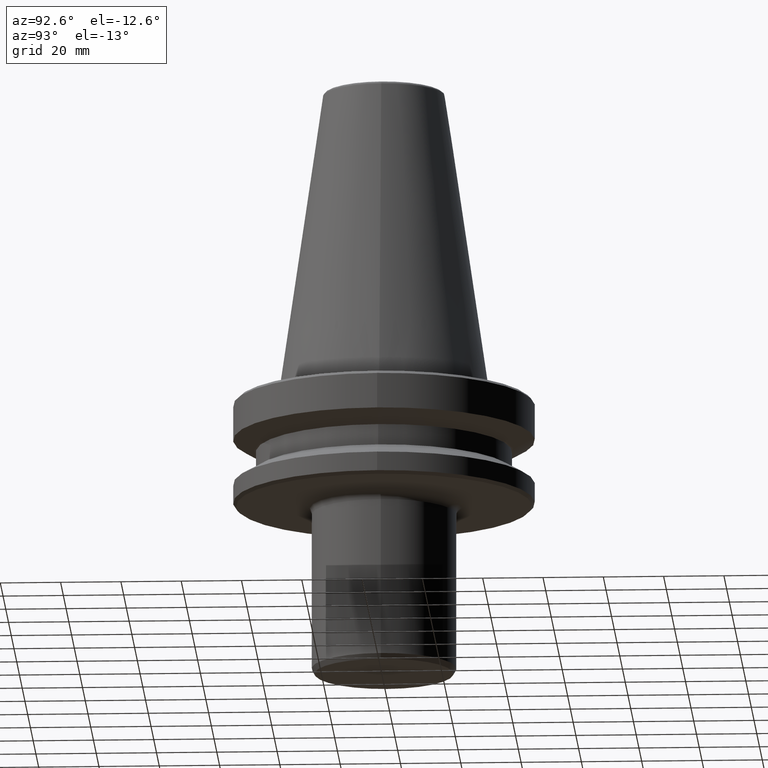
[diagram: clean part render]
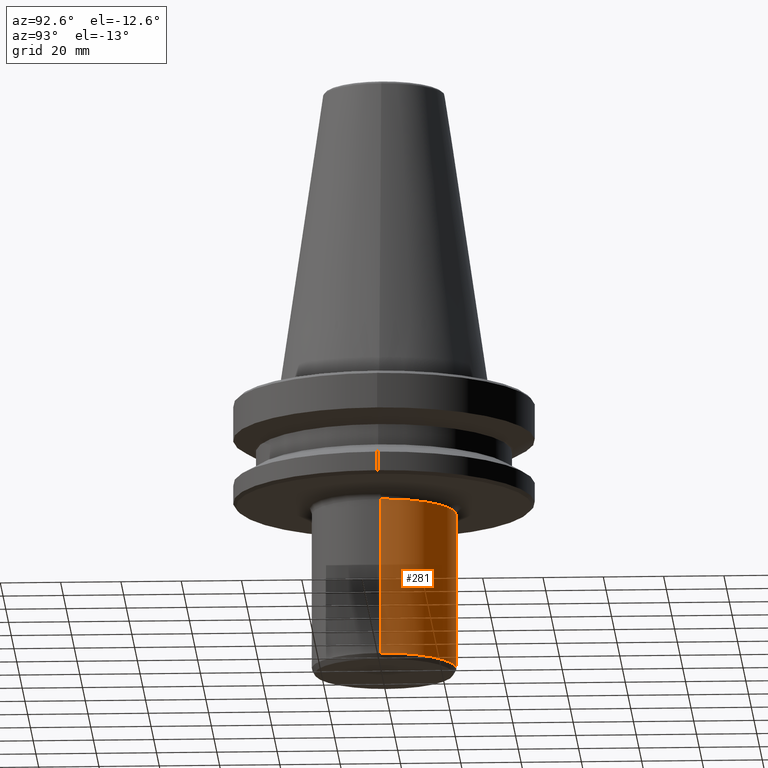
[diagram: same view with one face highlighted and labeled with its STEP entity id]
A machine part, auxiliary view. The second image highlights one B-rep face of the part: STEP entity #281.
In plain terms, the highlighted cylindrical surface (partial cylindrical patch) has radius 24 mm, axis along (-0, -0, 1).
Its self-contained STEP definition (entity closure, byte-faithful):
#25 = DIRECTION ( 'NONE',  ( 1.000000000000000000, 0.0000000000000000000, 0.0000000000000000000 ) ) ;
#30 = EDGE_CURVE ( 'NONE', #776, #101, #379, .T. ) ;
#45 = CARTESIAN_POINT ( 'NONE',  ( 0.0000000000000000000, 0.0000000000000000000, -93.26794919243195600 ) ) ;
#67 = CARTESIAN_POINT ( 'NONE',  ( 0.0000000000000000000, 0.0000000000000000000, 108.3108805077434200 ) ) ;
#77 = CARTESIAN_POINT ( 'NONE',  ( 24.00000000000000000, 0.0000000000000000000, -40.99999999994118100 ) ) ;
#101 = VERTEX_POINT ( 'NONE', #402 ) ;
#106 = CARTESIAN_POINT ( 'NONE',  ( 24.00000000000000000, 0.0000000000000000000, 108.3108805077434200 ) ) ;
#136 = VECTOR ( 'NONE', #952, 1000.000000000000000 ) ;
#187 = DIRECTION ( 'NONE',  ( -0.0000000000000000000, -0.0000000000000000000, 1.000000000000000000 ) ) ;
#213 = ORIENTED_EDGE ( 'NONE', *, *, #278, .T. ) ;
#244 = CARTESIAN_POINT ( 'NONE',  ( 24.00000000000000000, 0.0000000000000000000, -93.26794919243195600 ) ) ;
#265 = CIRCLE ( 'NONE', #878, 24.00000000000000000 ) ;
#266 = DIRECTION ( 'NONE',  ( -0.0000000000000000000, -0.0000000000000000000, 1.000000000000000000 ) ) ;
#278 = EDGE_CURVE ( 'NONE', #398, #776, #265, .T. ) ;
#281 = ADVANCED_FACE ( 'NONE', ( #706 ), #832, .T. ) ;
#282 = DIRECTION ( 'NONE',  ( -0.0000000000000000000, -0.0000000000000000000, 1.000000000000000000 ) ) ;
#331 = AXIS2_PLACEMENT_3D ( 'NONE', #67, #187, #25 ) ;
#378 = DIRECTION ( 'NONE',  ( 1.000000000000000000, 0.0000000000000000000, 0.0000000000000000000 ) ) ;
#379 = LINE ( 'NONE', #665, #963 ) ;
#385 = EDGE_CURVE ( 'NONE', #965, #101, #662, .T. ) ;
#398 = VERTEX_POINT ( 'NONE', #244 ) ;
#402 = CARTESIAN_POINT ( 'NONE',  ( -24.00000000000000000, 2.939152317953647900E-015, -40.99999999994118100 ) ) ;
#427 = EDGE_CURVE ( 'NONE', #398, #965, #761, .T. ) ;
#454 = ORIENTED_EDGE ( 'NONE', *, *, #427, .F. ) ;
#599 = CARTESIAN_POINT ( 'NONE',  ( -24.00000000000000000, 2.939152317953647900E-015, -93.26794919243195600 ) ) ;
#662 = CIRCLE ( 'NONE', #810, 24.00000000000000000 ) ;
#665 = CARTESIAN_POINT ( 'NONE',  ( -24.00000000000000000, 2.939152317953647900E-015, 108.3108805077434200 ) ) ;
#677 = DIRECTION ( 'NONE',  ( -0.0000000000000000000, -0.0000000000000000000, 1.000000000000000000 ) ) ;
#706 = FACE_OUTER_BOUND ( 'NONE', #961, .T. ) ;
#761 = LINE ( 'NONE', #106, #136 ) ;
#769 = ORIENTED_EDGE ( 'NONE', *, *, #30, .T. ) ;
#776 = VERTEX_POINT ( 'NONE', #599 ) ;
#810 = AXIS2_PLACEMENT_3D ( 'NONE', #821, #282, #378 ) ;
#821 = CARTESIAN_POINT ( 'NONE',  ( 0.0000000000000000000, 0.0000000000000000000, -40.99999999994118100 ) ) ;
#832 = CYLINDRICAL_SURFACE ( 'NONE', #331, 24.00000000000000000 ) ;
#841 = ORIENTED_EDGE ( 'NONE', *, *, #385, .F. ) ;
#878 = AXIS2_PLACEMENT_3D ( 'NONE', #45, #266, #960 ) ;
#952 = DIRECTION ( 'NONE',  ( -0.0000000000000000000, -0.0000000000000000000, 1.000000000000000000 ) ) ;
#960 = DIRECTION ( 'NONE',  ( 1.000000000000000000, 0.0000000000000000000, 0.0000000000000000000 ) ) ;
#961 = EDGE_LOOP ( 'NONE', ( #213, #769, #841, #454 ) ) ;
#963 = VECTOR ( 'NONE', #677, 1000.000000000000000 ) ;
#965 = VERTEX_POINT ( 'NONE', #77 ) ;